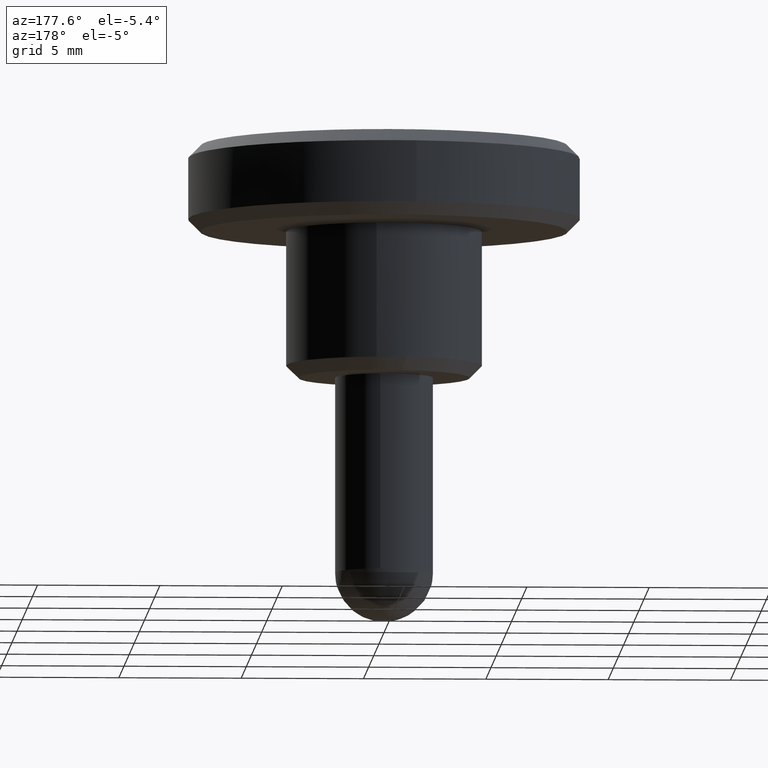
[diagram: clean part render]
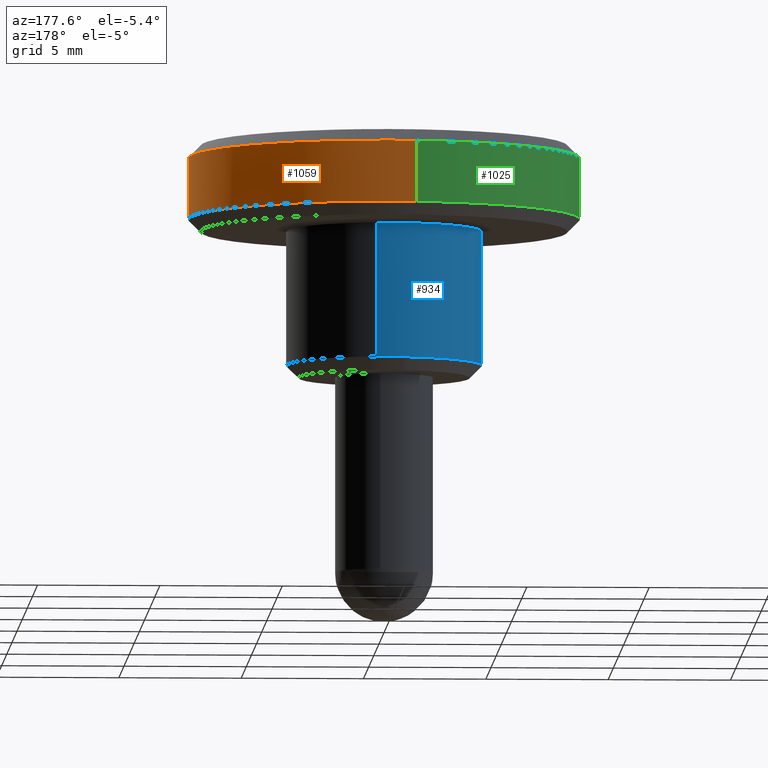
[diagram: same view with three faces highlighted in distinct colors, each labeled with its STEP entity id]
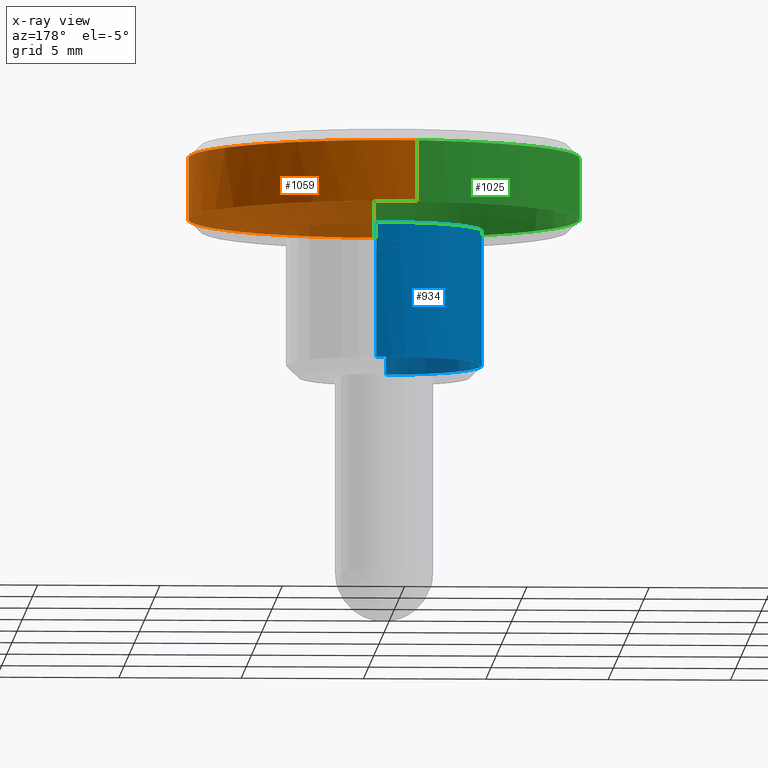
[diagram: x-ray of the same camera — body ghosted, the three highlighted faces saturated]
A machine part, auxiliary view with three faces highlighted in distinct colors.
The next image is the same camera in x-ray (body ghosted, the three faces saturated) — at least one of them is partly hidden behind the body in this view.
Their STEP definitions:

[orange] entity #1059 — the highlighted face is a freeform B-spline surface patch.
#256=CARTESIAN_POINT('',(7.793745225428513,1.804864360863222,8.999999999999780));
#257=VERTEX_POINT('',#256);
#258=CARTESIAN_POINT('',(8.0,0.0,9.0));
#259=VERTEX_POINT('',#258);
#260=CARTESIAN_POINT('',(7.793745225428513,1.804864360863222,8.999999999999780));
#261=CARTESIAN_POINT('',(8.0,0.914217285439979,9.0));
#262=CARTESIAN_POINT('',(8.0,0.0,9.0));
#270=(BOUNDED_CURVE()B_SPLINE_CURVE(2,(#260,#261,#262),.UNSPECIFIED.,.F.,.U.)B_SPLINE_CURVE_WITH_KNOTS((3,3),(0.961422971784526,1.0),.UNSPECIFIED.)CURVE()GEOMETRIC_REPRESENTATION_ITEM()RATIONAL_B_SPLINE_CURVE((0.923556557442650,0.954804200134849,1.0))REPRESENTATION_ITEM(''));
#271=EDGE_CURVE('',#257,#259,#270,.T.);
#329=CARTESIAN_POINT('',(0.069812284012937,7.999695384516684,8.999999999996485));
#330=VERTEX_POINT('',#329);
#336=CARTESIAN_POINT('',(-0.993019726392196,7.938130247292321,8.999999999999975));
#337=VERTEX_POINT('',#336);
#338=CARTESIAN_POINT('',(-0.993019726392196,7.938130247292321,8.999999999999975));
#339=CARTESIAN_POINT('',(-0.498437250033628,8.0,9.0));
#340=CARTESIAN_POINT('',(0.0,8.0,9.0));
#341=CARTESIAN_POINT('',(0.034906806591551,8.0,9.0));
#342=CARTESIAN_POINT('',(0.069812284012937,7.999695384516684,8.999999999996485));
#350=(BOUNDED_CURVE()B_SPLINE_CURVE(2,(#338,#339,#340,#341,#342),.UNSPECIFIED.,.F.,.U.)B_SPLINE_CURVE_WITH_KNOTS((3,2,3),(0.728526162175782,0.750000000000000,0.751539894336129),.UNSPECIFIED.)CURVE()GEOMETRIC_REPRESENTATION_ITEM()RATIONAL_B_SPLINE_CURVE((0.954005607154882,0.974841834077547,1.0,0.998195901565034,0.996414028097762))REPRESENTATION_ITEM(''));
#351=EDGE_CURVE('',#337,#330,#350,.T.);
#368=CARTESIAN_POINT('',(0.069806294353646,-7.999695436779622,9.000000000000018));
#369=VERTEX_POINT('',#368);
#385=CARTESIAN_POINT('',(8.0,0.0,9.0));
#386=CARTESIAN_POINT('',(8.0,-7.930495622804870,9.0));
#387=CARTESIAN_POINT('',(0.069806294353646,-7.999695436779622,9.000000000000018));
#395=(BOUNDED_CURVE()B_SPLINE_CURVE(2,(#385,#386,#387),.UNSPECIFIED.,.F.,.U.)B_SPLINE_CURVE_WITH_KNOTS((3,3),(0.0,0.248460237548887),.UNSPECIFIED.)CURVE()GEOMETRIC_REPRESENTATION_ITEM()RATIONAL_B_SPLINE_CURVE((1.0,0.708910725108606,0.996414333316804))REPRESENTATION_ITEM(''));
#396=EDGE_CURVE('',#259,#369,#395,.T.);
#415=CARTESIAN_POINT('',(0.069812284012937,7.999695384516684,8.999999999996485));
#416=CARTESIAN_POINT('',(6.371891347878983,7.944697973675043,9.0));
#417=CARTESIAN_POINT('',(7.793745225428513,1.804864360863222,8.999999999999780));
#425=(BOUNDED_CURVE()B_SPLINE_CURVE(2,(#415,#416,#417),.UNSPECIFIED.,.F.,.U.)B_SPLINE_CURVE_WITH_KNOTS((3,3),(0.751539894336128,0.961422971784527),.UNSPECIFIED.)CURVE()GEOMETRIC_REPRESENTATION_ITEM()RATIONAL_B_SPLINE_CURVE((0.996414028097765,0.753549905436829,0.923556557442651))REPRESENTATION_ITEM(''));
#426=EDGE_CURVE('',#330,#257,#425,.T.);
#468=CARTESIAN_POINT('',(3.233723455905026,7.317310476584448,6.500000000000181));
#469=VERTEX_POINT('',#468);
#470=CARTESIAN_POINT('',(-0.993020557150738,7.938130143369020,6.500000000000000));
#471=VERTEX_POINT('',#470);
#472=CARTESIAN_POINT('',(3.233723455905026,7.317310476584448,6.500000000000182));
#473=CARTESIAN_POINT('',(1.688924938017294,8.0,6.500000000000000));
#474=CARTESIAN_POINT('',(0.0,8.0,6.500000000000000));
#475=CARTESIAN_POINT('',(-0.498437670275357,8.0,6.499999999999999));
#476=CARTESIAN_POINT('',(-0.993020557150738,7.938130143369020,6.500000000000000));
#484=(BOUNDED_CURVE()B_SPLINE_CURVE(2,(#472,#473,#474,#475,#476),.UNSPECIFIED.,.F.,.U.)B_SPLINE_CURVE_WITH_KNOTS((3,2,3),(0.181361578459850,0.250000000000000,0.271473855473722),.UNSPECIFIED.)CURVE()GEOMETRIC_REPRESENTATION_ITEM()RATIONAL_B_SPLINE_CURVE((0.883326595751797,0.919585087123324,1.0,0.974841813399867,0.954005572903991))REPRESENTATION_ITEM(''));
#485=EDGE_CURVE('',#469,#471,#484,.T.);
#528=CARTESIAN_POINT('',(0.069809143826576,-7.999695411913435,6.499999999998768));
#529=VERTEX_POINT('',#528);
#586=CARTESIAN_POINT('',(8.0,0.0,6.500000000000000));
#587=VERTEX_POINT('',#586);
#588=CARTESIAN_POINT('',(8.0,0.0,6.500000000000000));
#589=CARTESIAN_POINT('',(8.0,5.210960020729960,6.500000000000000));
#590=CARTESIAN_POINT('',(3.233723455905025,7.317310476584449,6.500000000000183));
#598=(BOUNDED_CURVE()B_SPLINE_CURVE(2,(#588,#589,#590),.UNSPECIFIED.,.F.,.U.)B_SPLINE_CURVE_WITH_KNOTS((3,3),(0.0,0.181361578459850),.UNSPECIFIED.)CURVE()GEOMETRIC_REPRESENTATION_ITEM()RATIONAL_B_SPLINE_CURVE((1.0,0.787521694063224,0.883326595751797))REPRESENTATION_ITEM(''));
#599=EDGE_CURVE('',#587,#469,#598,.T.);
#601=CARTESIAN_POINT('',(0.069809143826576,-7.999695411913435,6.499999999998768));
#602=CARTESIAN_POINT('',(8.0,-7.930492797873697,6.500000000000000));
#603=CARTESIAN_POINT('',(8.0,0.0,6.500000000000000));
#611=(BOUNDED_CURVE()B_SPLINE_CURVE(2,(#601,#602,#603),.UNSPECIFIED.,.F.,.U.)B_SPLINE_CURVE_WITH_KNOTS((3,3),(0.751539825192777,1.0),.UNSPECIFIED.)CURVE()GEOMETRIC_REPRESENTATION_ITEM()RATIONAL_B_SPLINE_CURVE((0.996414188114897,0.708910798615037,1.0))REPRESENTATION_ITEM(''));
#612=EDGE_CURVE('',#529,#587,#611,.T.);
#1010=CARTESIAN_POINT('',(-0.993020557150738,7.938130143369020,6.500000000000000));
#1011=CARTESIAN_POINT('',(-0.993019726392196,7.938130247292321,8.999999999999975));
#1012=QUASI_UNIFORM_CURVE('',1,(#1010,#1011),.UNSPECIFIED.,.F.,.U.);
#1013=EDGE_CURVE('',#471,#337,#1012,.T.);
#1017=CARTESIAN_POINT('',(0.069809143826576,-7.999695411913435,6.499999999998768));
#1018=CARTESIAN_POINT('',(0.069806294353646,-7.999695436779622,9.000000000000018));
#1019=QUASI_UNIFORM_CURVE('',1,(#1017,#1018),.UNSPECIFIED.,.F.,.U.);
#1020=EDGE_CURVE('',#529,#369,#1019,.T.);
#1026=CARTESIAN_POINT('',(0.069812283986991,-7.999695384513368,6.437499999999999));
#1027=CARTESIAN_POINT('',(8.069507668500359,-7.929883100526377,6.437499999999999));
#1028=CARTESIAN_POINT('',(7.999695384513368,0.069812283986991,6.437499999999999));
#1029=CARTESIAN_POINT('',(7.929883100526377,8.069507668500359,6.437499999999999));
#1030=CARTESIAN_POINT('',(-0.069812283986991,7.999695384513368,6.437499999999999));
#1031=CARTESIAN_POINT('',(-0.533201271665389,7.995651450082205,6.437499999999998));
#1032=CARTESIAN_POINT('',(-0.993024016638634,7.938129710604309,6.437499999999999));
#1033=CARTESIAN_POINT('',(0.069812283986991,-7.999695384513368,9.064062500000002));
#1034=CARTESIAN_POINT('',(8.069507668500359,-7.929883100526377,9.064062500000002));
#1035=CARTESIAN_POINT('',(7.999695384513368,0.069812283986991,9.064062500000002));
#1036=CARTESIAN_POINT('',(7.929883100526377,8.069507668500359,9.064062500000002));
#1037=CARTESIAN_POINT('',(-0.069812283986991,7.999695384513368,9.064062500000002));
#1038=CARTESIAN_POINT('',(-0.533201271665389,7.995651450082205,9.064062500000002));
#1039=CARTESIAN_POINT('',(-0.993024016638634,7.938129710604309,9.064062500000002));
#1047=(BOUNDED_SURFACE()B_SPLINE_SURFACE(2,1,((#1026,#1033),(#1027,#1034),(#1028,#1035),(#1029,#1036),(#1030,#1037),(#1031,#1038),(#1032,#1039)),.UNSPECIFIED.,.F.,.F.,.U.)B_SPLINE_SURFACE_WITH_KNOTS((3,2,2,3),(2,2),(0.0,13.254833995939039,26.509667991878079,27.570054711553201),(0.0,2.626562500000004),.UNSPECIFIED.)GEOMETRIC_REPRESENTATION_ITEM()RATIONAL_B_SPLINE_SURFACE(((1.0,1.0),(0.707106781186548,0.707106781186548),(1.0,1.0),(0.707106781186548,0.707106781186548),(1.0,1.0),(0.976568542494924,0.976568542494924),(0.956886118190660,0.956886118190660)))REPRESENTATION_ITEM('')SURFACE());
#1048=ORIENTED_EDGE('',*,*,#351,.T.);
#1049=ORIENTED_EDGE('',*,*,#426,.T.);
#1050=ORIENTED_EDGE('',*,*,#271,.T.);
#1051=ORIENTED_EDGE('',*,*,#396,.T.);
#1052=ORIENTED_EDGE('',*,*,#1020,.F.);
#1053=ORIENTED_EDGE('',*,*,#612,.T.);
#1054=ORIENTED_EDGE('',*,*,#599,.T.);
#1055=ORIENTED_EDGE('',*,*,#485,.T.);
#1056=ORIENTED_EDGE('',*,*,#1013,.T.);
#1057=EDGE_LOOP('',(#1048,#1049,#1050,#1051,#1052,#1053,#1054,#1055,#1056));
#1058=FACE_OUTER_BOUND('',#1057,.T.);
#1059=ADVANCED_FACE('',(#1058),#1047,.T.);

[blue] entity #934 — the highlighted face is a freeform B-spline surface patch.
#665=CARTESIAN_POINT('',(-0.732494484874875,3.932359535827230,0.499999961172962));
#666=VERTEX_POINT('',#665);
#667=CARTESIAN_POINT('',(-3.999999999999915,0.0,0.499999999999945));
#668=VERTEX_POINT('',#667);
#669=CARTESIAN_POINT('',(-0.732494484874875,3.932359535827230,0.499999961172962));
#670=CARTESIAN_POINT('',(-3.999999999999915,3.323709815139511,0.499999999999945));
#671=CARTESIAN_POINT('',(-3.999999999999915,0.0,0.499999999999945));
#679=(BOUNDED_CURVE()B_SPLINE_CURVE(2,(#669,#670,#671),.UNSPECIFIED.,.F.,.U.)B_SPLINE_CURVE_WITH_KNOTS((3,3),(0.281445261705507,0.500000000000000),.UNSPECIFIED.)CURVE()GEOMETRIC_REPRESENTATION_ITEM()RATIONAL_B_SPLINE_CURVE((0.935586820757659,0.743947196855977,1.0))REPRESENTATION_ITEM(''));
#680=EDGE_CURVE('',#666,#668,#679,.T.);
#728=CARTESIAN_POINT('',(-0.244190999814815,-3.992539386856283,0.499999999999933));
#729=VERTEX_POINT('',#728);
#745=CARTESIAN_POINT('',(-3.999999999999915,0.0,0.499999999999945));
#746=CARTESIAN_POINT('',(-3.999999999999916,-3.762827249793105,0.499999999999945));
#747=CARTESIAN_POINT('',(-0.244190999814815,-3.992539386856283,0.499999999999933));
#755=(BOUNDED_CURVE()B_SPLINE_CURVE(2,(#745,#746,#747),.UNSPECIFIED.,.F.,.U.)B_SPLINE_CURVE_WITH_KNOTS((3,3),(0.500000000000000,0.739333098736265),.UNSPECIFIED.)CURVE()GEOMETRIC_REPRESENTATION_ITEM()RATIONAL_B_SPLINE_CURVE((1.0,0.719603833370150,0.976072334206636))REPRESENTATION_ITEM(''));
#756=EDGE_CURVE('',#668,#729,#755,.T.);
#783=CARTESIAN_POINT('',(0.472136375766618,3.972038172358992,0.499999999999946));
#784=VERTEX_POINT('',#783);
#785=CARTESIAN_POINT('',(0.472136375766618,3.972038172358993,0.499999999999946));
#786=CARTESIAN_POINT('',(0.236895909796755,3.999999999999915,0.499999999999945));
#787=CARTESIAN_POINT('',(0.0,3.999999999999915,0.499999999999945));
#788=CARTESIAN_POINT('',(-0.369370279233281,3.999999999999915,0.499999999999945));
#789=CARTESIAN_POINT('',(-0.732494484874875,3.932359535827229,0.499999961172962));
#797=(BOUNDED_CURVE()B_SPLINE_CURVE(2,(#785,#786,#787,#788,#789),.UNSPECIFIED.,.F.,.U.)B_SPLINE_CURVE_WITH_KNOTS((3,2,3),(0.229562521413091,0.250000000000000,0.281445261705507),.UNSPECIFIED.)CURVE()GEOMETRIC_REPRESENTATION_ITEM()RATIONAL_B_SPLINE_CURVE((0.956026848068862,0.976056004448996,1.0,0.963159584330570,0.935586820757659))REPRESENTATION_ITEM(''));
#798=EDGE_CURVE('',#784,#666,#797,.T.);
#863=CARTESIAN_POINT('',(0.472136938627024,3.972038105454581,0.362499999999944));
#864=CARTESIAN_POINT('',(0.358458914551903,3.985550461794337,0.362499999999944));
#865=CARTESIAN_POINT('',(0.244194158139423,3.992539193687382,0.362499999999943));
#866=CARTESIAN_POINT('',(-3.748345035547960,4.236733351826805,0.362499999999943));
#867=CARTESIAN_POINT('',(-3.992539193687382,0.244194158139423,0.362499999999943));
#868=CARTESIAN_POINT('',(-4.236733351826805,-3.748345035547960,0.362499999999943));
#869=CARTESIAN_POINT('',(-0.244194158139423,-3.992539193687382,0.362499999999943));
#870=CARTESIAN_POINT('',(0.472136938627024,3.972038105454581,6.140937500000004));
#871=CARTESIAN_POINT('',(0.358458914551903,3.985550461794337,6.140937500000002));
#872=CARTESIAN_POINT('',(0.244194158139423,3.992539193687382,6.140937500000002));
#873=CARTESIAN_POINT('',(-3.748345035547960,4.236733351826805,6.140937500000002));
#874=CARTESIAN_POINT('',(-3.992539193687382,0.244194158139423,6.140937500000002));
#875=CARTESIAN_POINT('',(-4.236733351826805,-3.748345035547960,6.140937500000002));
#876=CARTESIAN_POINT('',(-0.244194158139423,-3.992539193687382,6.140937500000002));
#884=(BOUNDED_SURFACE()B_SPLINE_SURFACE(2,1,((#863,#870),(#864,#871),(#865,#872),(#866,#873),(#867,#874),(#868,#875),(#869,#876)),.UNSPECIFIED.,.F.,.F.,.U.)B_SPLINE_SURFACE_WITH_KNOTS((3,2,2,3),(2,2),(0.0,0.265096679918776,6.892513677888154,13.519930675857530),(0.0,5.778437500000059),.UNSPECIFIED.)GEOMETRIC_REPRESENTATION_ITEM()RATIONAL_B_SPLINE_SURFACE(((0.977505800795127,0.977505800795127),(0.988284271247462,0.988284271247462),(1.0,1.0),(0.707106781186548,0.707106781186548),(1.0,1.0),(0.707106781186548,0.707106781186548),(1.0,1.0)))REPRESENTATION_ITEM('')SURFACE());
#885=ORIENTED_EDGE('',*,*,#798,.T.);
#886=ORIENTED_EDGE('',*,*,#680,.T.);
#887=ORIENTED_EDGE('',*,*,#756,.T.);
#888=CARTESIAN_POINT('',(-0.244191037905405,-3.992539384526623,6.0));
#889=VERTEX_POINT('',#888);
#890=CARTESIAN_POINT('',(-0.244190999814815,-3.992539386856283,0.499999999999933));
#891=CARTESIAN_POINT('',(-0.244191037905405,-3.992539384526623,6.0));
#892=QUASI_UNIFORM_CURVE('',1,(#890,#891),.UNSPECIFIED.,.F.,.U.);
#893=EDGE_CURVE('',#729,#889,#892,.T.);
#894=ORIENTED_EDGE('',*,*,#893,.T.);
#895=CARTESIAN_POINT('',(-3.999999999999915,0.0,6.0));
#896=VERTEX_POINT('',#895);
#897=CARTESIAN_POINT('',(-3.999999999999915,0.0,6.0));
#898=CARTESIAN_POINT('',(-3.999999999999916,-3.762827213826988,6.000000000000001));
#899=CARTESIAN_POINT('',(-0.244191037905405,-3.992539384526624,6.000000000000001));
#907=(BOUNDED_CURVE()B_SPLINE_CURVE(2,(#897,#898,#899),.UNSPECIFIED.,.F.,.U.)B_SPLINE_CURVE_WITH_KNOTS((3,3),(0.500000000000000,0.739333097090092),.UNSPECIFIED.)CURVE()GEOMETRIC_REPRESENTATION_ITEM()RATIONAL_B_SPLINE_CURVE((1.0,0.719603835298762,0.976072330678569))REPRESENTATION_ITEM(''));
#908=EDGE_CURVE('',#896,#889,#907,.T.);
#909=ORIENTED_EDGE('',*,*,#908,.F.);
#910=CARTESIAN_POINT('',(0.472136382539207,3.972038171553969,6.0));
#911=VERTEX_POINT('',#910);
#912=CARTESIAN_POINT('',(0.472136382539207,3.972038171553968,6.000000000000001));
#913=CARTESIAN_POINT('',(0.236895916640943,3.999999999999916,6.0));
#914=CARTESIAN_POINT('',(0.0,3.999999999999915,6.0));
#915=CARTESIAN_POINT('',(-3.999999999999915,3.999999999999915,6.0));
#916=CARTESIAN_POINT('',(-3.999999999999915,0.0,6.0));
#924=(BOUNDED_CURVE()B_SPLINE_CURVE(2,(#912,#913,#914,#915,#916),.UNSPECIFIED.,.F.,.U.)B_SPLINE_CURVE_WITH_KNOTS((3,2,3),(0.229562520836767,0.250000000000000,0.500000000000000),.UNSPECIFIED.)CURVE()GEOMETRIC_REPRESENTATION_ITEM()RATIONAL_B_SPLINE_CURVE((0.956026846939244,0.976056003773791,1.0,0.707106781186547,1.0))REPRESENTATION_ITEM(''));
#925=EDGE_CURVE('',#911,#896,#924,.T.);
#926=ORIENTED_EDGE('',*,*,#925,.F.);
#927=CARTESIAN_POINT('',(0.472136375766618,3.972038172358992,0.499999999999946));
#928=CARTESIAN_POINT('',(0.472136382539207,3.972038171553969,6.0));
#929=QUASI_UNIFORM_CURVE('',1,(#927,#928),.UNSPECIFIED.,.F.,.U.);
#930=EDGE_CURVE('',#784,#911,#929,.T.);
#931=ORIENTED_EDGE('',*,*,#930,.F.);
#932=EDGE_LOOP('',(#885,#886,#887,#894,#909,#926,#931));
#933=FACE_OUTER_BOUND('',#932,.T.);
#934=ADVANCED_FACE('',(#933),#884,.T.);

[green] entity #1025 — the highlighted face is a freeform B-spline surface patch.
#336=CARTESIAN_POINT('',(-0.993019726392196,7.938130247292321,8.999999999999975));
#337=VERTEX_POINT('',#336);
#353=CARTESIAN_POINT('',(-8.0,0.0,9.0));
#354=VERTEX_POINT('',#353);
#355=CARTESIAN_POINT('',(-8.0,0.0,9.0));
#356=CARTESIAN_POINT('',(-8.0,7.061592647459215,9.000000000000002));
#357=CARTESIAN_POINT('',(-0.993019726392196,7.938130247292321,8.999999999999975));
#365=(BOUNDED_CURVE()B_SPLINE_CURVE(2,(#355,#356,#357),.UNSPECIFIED.,.F.,.U.)B_SPLINE_CURVE_WITH_KNOTS((3,3),(0.500000000000000,0.728526162175782),.UNSPECIFIED.)CURVE()GEOMETRIC_REPRESENTATION_ITEM()RATIONAL_B_SPLINE_CURVE((1.0,0.732264947109001,0.954005607154882))REPRESENTATION_ITEM(''));
#366=EDGE_CURVE('',#354,#337,#365,.T.);
#368=CARTESIAN_POINT('',(0.069806294353646,-7.999695436779622,9.000000000000018));
#369=VERTEX_POINT('',#368);
#370=CARTESIAN_POINT('',(0.069806294353646,-7.999695436779622,9.000000000000018));
#371=CARTESIAN_POINT('',(0.034903811577907,-8.0,9.000000000000002));
#372=CARTESIAN_POINT('',(0.0,-8.0,9.0));
#373=CARTESIAN_POINT('',(-8.0,-8.0,9.000000000000002));
#374=CARTESIAN_POINT('',(-8.0,0.0,9.0));
#382=(BOUNDED_CURVE()B_SPLINE_CURVE(2,(#370,#371,#372,#373,#374),.UNSPECIFIED.,.F.,.U.)B_SPLINE_CURVE_WITH_KNOTS((3,2,3),(0.248460237548887,0.250000000000000,0.500000000000000),.UNSPECIFIED.)CURVE()GEOMETRIC_REPRESENTATION_ITEM()RATIONAL_B_SPLINE_CURVE((0.996414333316804,0.998196056077941,1.0,0.707106781186548,1.0))REPRESENTATION_ITEM(''));
#383=EDGE_CURVE('',#369,#354,#382,.T.);
#470=CARTESIAN_POINT('',(-0.993020557150738,7.938130143369020,6.500000000000000));
#471=VERTEX_POINT('',#470);
#528=CARTESIAN_POINT('',(0.069809143826576,-7.999695411913435,6.499999999998768));
#529=VERTEX_POINT('',#528);
#535=CARTESIAN_POINT('',(-8.0,0.0,6.500000000000000));
#536=VERTEX_POINT('',#535);
#537=CARTESIAN_POINT('',(-8.0,0.0,6.500000000000000));
#538=CARTESIAN_POINT('',(-8.0,-8.0,6.500000000000001));
#539=CARTESIAN_POINT('',(0.0,-8.0,6.500000000000000));
#540=CARTESIAN_POINT('',(0.034905236395741,-8.0,6.500000000000002));
#541=CARTESIAN_POINT('',(0.069809143826576,-7.999695411913435,6.499999999998768));
#549=(BOUNDED_CURVE()B_SPLINE_CURVE(2,(#537,#538,#539,#540,#541),.UNSPECIFIED.,.F.,.U.)B_SPLINE_CURVE_WITH_KNOTS((3,2,3),(0.500000000000000,0.750000000000000,0.751539825192777),.UNSPECIFIED.)CURVE()GEOMETRIC_REPRESENTATION_ITEM()RATIONAL_B_SPLINE_CURVE((1.0,0.707106781186548,1.0,0.998195982571510,0.996414188114897))REPRESENTATION_ITEM(''));
#550=EDGE_CURVE('',#536,#529,#549,.T.);
#552=CARTESIAN_POINT('',(-0.993020557150738,7.938130143369020,6.500000000000000));
#553=CARTESIAN_POINT('',(-8.0,7.061591902674117,6.500000000000002));
#554=CARTESIAN_POINT('',(-8.0,0.0,6.500000000000000));
#562=(BOUNDED_CURVE()B_SPLINE_CURVE(2,(#552,#553,#554),.UNSPECIFIED.,.F.,.U.)B_SPLINE_CURVE_WITH_KNOTS((3,3),(0.271473855473722,0.500000000000000),.UNSPECIFIED.)CURVE()GEOMETRIC_REPRESENTATION_ITEM()RATIONAL_B_SPLINE_CURVE((0.954005572903991,0.732264967786681,1.0))REPRESENTATION_ITEM(''));
#563=EDGE_CURVE('',#471,#536,#562,.T.);
#991=CARTESIAN_POINT('',(-0.993024016638634,7.938129710604309,6.437499999999999));
#992=CARTESIAN_POINT('',(-8.061862644019557,7.053850065065769,6.437499999999999));
#993=CARTESIAN_POINT('',(-7.999695384513368,-0.069812283986991,6.437499999999999));
#994=CARTESIAN_POINT('',(-7.929883100526377,-8.069507668500359,6.437499999999999));
#995=CARTESIAN_POINT('',(0.069812283986991,-7.999695384513368,6.437499999999999));
#996=CARTESIAN_POINT('',(-0.993024016638634,7.938129710604309,9.064062500000002));
#997=CARTESIAN_POINT('',(-8.061862644019557,7.053850065065769,9.064062500000002));
#998=CARTESIAN_POINT('',(-7.999695384513368,-0.069812283986991,9.064062500000002));
#999=CARTESIAN_POINT('',(-7.929883100526377,-8.069507668500359,9.064062500000002));
#1000=CARTESIAN_POINT('',(0.069812283986991,-7.999695384513368,9.064062500000002));
#1008=(BOUNDED_SURFACE()B_SPLINE_SURFACE(2,1,((#991,#996),(#992,#997),(#993,#998),(#994,#999),(#995,#1000)),.UNSPECIFIED.,.F.,.F.,.U.)B_SPLINE_SURFACE_WITH_KNOTS((3,2,3),(2,2),(0.0,12.194447276263910,25.449281272202949),(0.0,2.626562500000004),.UNSPECIFIED.)GEOMETRIC_REPRESENTATION_ITEM()RATIONAL_B_SPLINE_SURFACE(((0.956886118190660,0.956886118190660),(0.730538238691624,0.730538238691624),(1.0,1.0),(0.707106781186548,0.707106781186548),(1.0,1.0)))REPRESENTATION_ITEM('')SURFACE());
#1009=ORIENTED_EDGE('',*,*,#366,.T.);
#1010=CARTESIAN_POINT('',(-0.993020557150738,7.938130143369020,6.500000000000000));
#1011=CARTESIAN_POINT('',(-0.993019726392196,7.938130247292321,8.999999999999975));
#1012=QUASI_UNIFORM_CURVE('',1,(#1010,#1011),.UNSPECIFIED.,.F.,.U.);
#1013=EDGE_CURVE('',#471,#337,#1012,.T.);
#1014=ORIENTED_EDGE('',*,*,#1013,.F.);
#1015=ORIENTED_EDGE('',*,*,#563,.T.);
#1016=ORIENTED_EDGE('',*,*,#550,.T.);
#1017=CARTESIAN_POINT('',(0.069809143826576,-7.999695411913435,6.499999999998768));
#1018=CARTESIAN_POINT('',(0.069806294353646,-7.999695436779622,9.000000000000018));
#1019=QUASI_UNIFORM_CURVE('',1,(#1017,#1018),.UNSPECIFIED.,.F.,.U.);
#1020=EDGE_CURVE('',#529,#369,#1019,.T.);
#1021=ORIENTED_EDGE('',*,*,#1020,.T.);
#1022=ORIENTED_EDGE('',*,*,#383,.T.);
#1023=EDGE_LOOP('',(#1009,#1014,#1015,#1016,#1021,#1022));
#1024=FACE_OUTER_BOUND('',#1023,.T.);
#1025=ADVANCED_FACE('',(#1024),#1008,.T.);